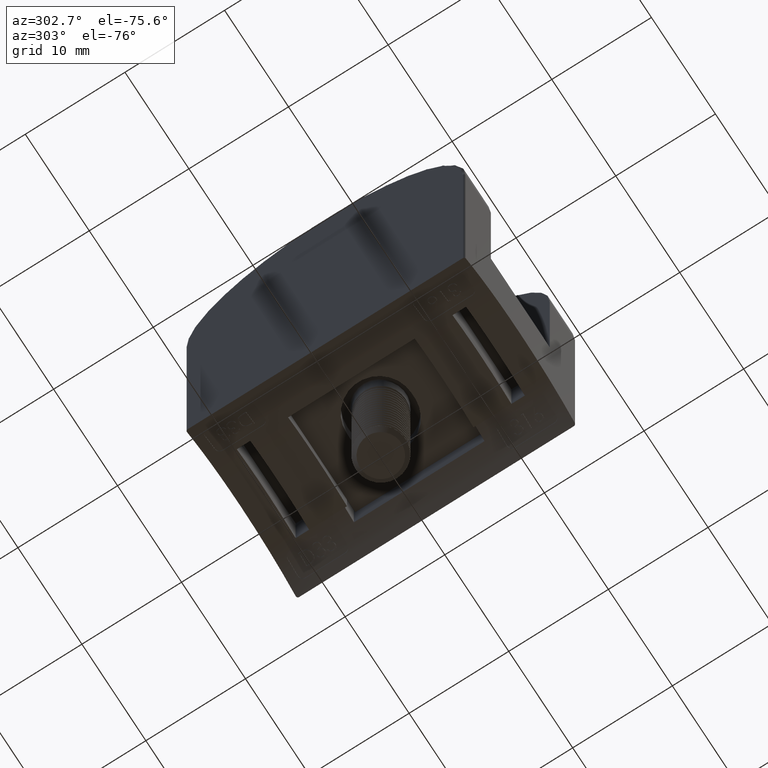
[diagram: clean part render]
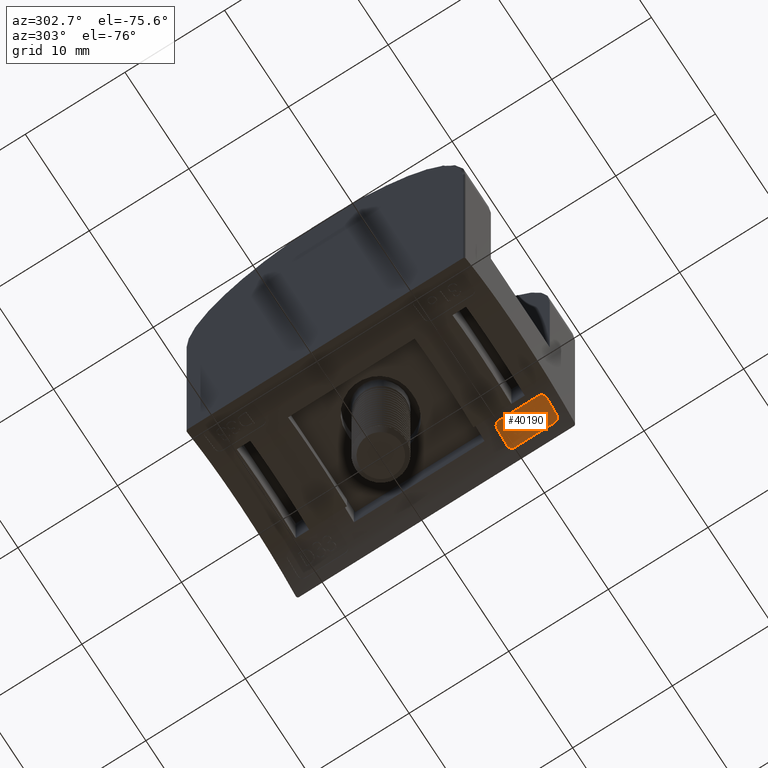
[diagram: same view with one face highlighted and labeled with its STEP entity id]
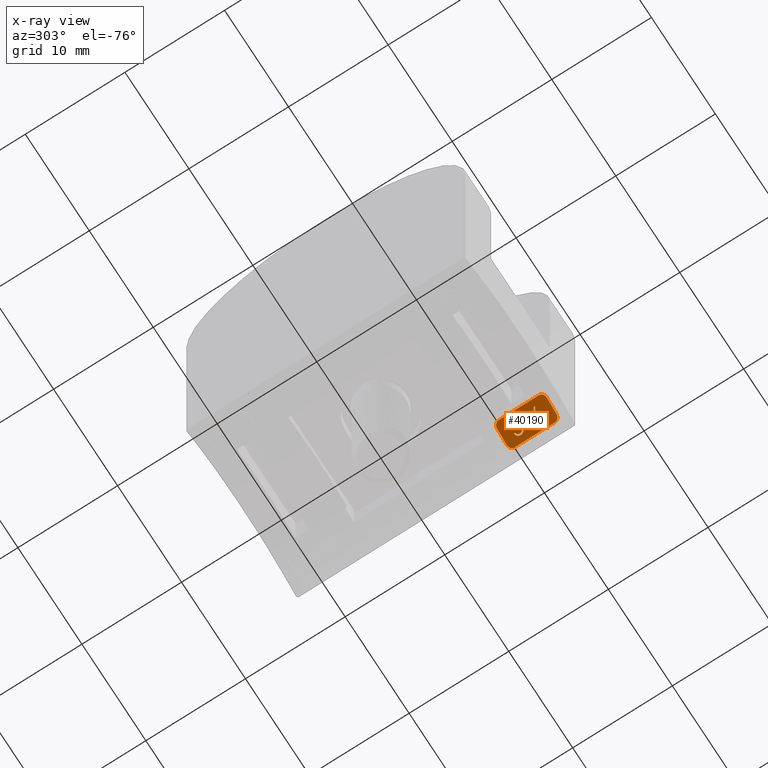
[diagram: x-ray of the same camera — body ghosted, the highlighted face saturated]
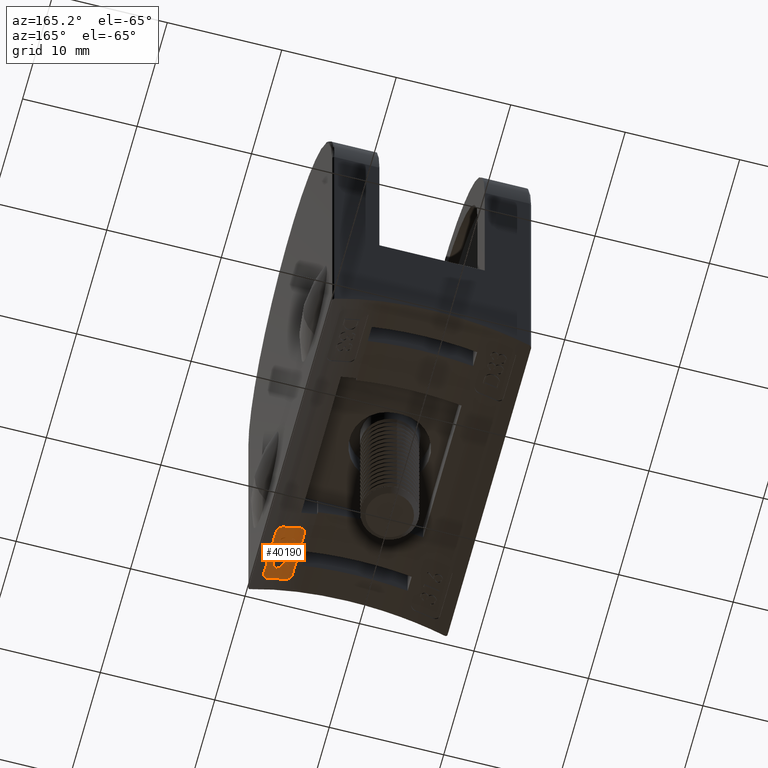
[diagram: same view with one face highlighted and labeled with its STEP entity id]
A machine part, auxiliary view. The second image highlights one B-rep face of the part: STEP entity #40190.
The next image is the same camera in x-ray: the body ghosted, the highlighted face saturated — about 0% of this face is hidden behind the body in this view.
A second angle (auxiliary view) of the same face is appended — the face is thin or edge-on in the first view.
In plain terms, the highlighted cylindrical surface (partial cylindrical patch) has radius 16.95 mm, axis along (0, -1, -0).
Its self-contained STEP definition (entity closure, byte-faithful):
#27 = CARTESIAN_POINT ( 'NONE',  ( 1.629790505243832400, 11.76018256754565000, -1.444946138365681600 ) ) ;
#118 = CARTESIAN_POINT ( 'NONE',  ( 1.749799416248807700, 9.278578703066234100, -1.390461914086929900 ) ) ;
#414 = CARTESIAN_POINT ( 'NONE',  ( 2.026668472081091500, 11.94013102909092600, -1.268832241233418100 ) ) ;
#433 = CARTESIAN_POINT ( 'NONE',  ( 1.014717443697587000, 8.361663562705782500, -1.742390308635440000 ) ) ;
#855 = CARTESIAN_POINT ( 'NONE',  ( 1.917975267077564900, 11.12954408708111000, -1.315853154788765500 ) ) ;
#858 = ORIENTED_EDGE ( 'NONE', *, *, #26124, .T. ) ;
#1006 = CARTESIAN_POINT ( 'NONE',  ( 2.083485801719910500, 11.93101666834453100, -1.244636686723369600 ) ) ;
#1529 = CARTESIAN_POINT ( 'NONE',  ( 2.922916666666668400, -13.99999999999999800, -0.9148875699064480400 ) ) ;
#1545 = CARTESIAN_POINT ( 'NONE',  ( 2.363221153846153800, 11.54916407919336900, -1.129067017033084300 ) ) ;
#1638 = CARTESIAN_POINT ( 'NONE',  ( 1.000000000000000200, 12.63969752374746300, -1.749917218769962800 ) ) ;
#1676 = DIRECTION ( 'NONE',  ( -0.0000000000000000000, 1.000000000000000000, -0.0000000000000000000 ) ) ;
#1687 = CARTESIAN_POINT ( 'NONE',  ( 2.034719272997772800, 9.922280634220545200, -1.265437258329322500 ) ) ;
#1842 = CARTESIAN_POINT ( 'NONE',  ( 2.059924388721183800, 9.791276614834126600, -1.254747649476767800 ) ) ;
#2055 = CARTESIAN_POINT ( 'NONE',  ( 3.499999999999999600, 12.49999999999998800, -0.7173467774206527800 ) ) ;
#2065 = B_SPLINE_CURVE_WITH_KNOTS ( 'NONE', 3,
 ( #38805, #6026, #24608, #48519 ),
 .UNSPECIFIED., .F., .F.,
 ( 4, 4 ),
 ( 0.0000000000000000000, 1.000000000000000000 ),
 .UNSPECIFIED. ) ;
#2296 = CARTESIAN_POINT ( 'NONE',  ( 1.701762820512819200, 9.467796390892086600, -1.412151173831140500 ) ) ;
#2485 = CARTESIAN_POINT ( 'NONE',  ( 2.493413515702167500, 9.686468126442727900, -1.077213809445988200 ) ) ;
#2576 = VERTEX_POINT ( 'NONE', #6161 ) ;
#2652 = CARTESIAN_POINT ( 'NONE',  ( 2.258496190773026800, 9.450516024179744800, -1.171685711482795400 ) ) ;
#2729 = ORIENTED_EDGE ( 'NONE', *, *, #58917, .F. ) ;
#2739 = DIRECTION ( 'NONE',  ( 0.0000000000000000000, -2.046871358084728800E-016, 1.000000000000000000 ) ) ;
#2740 = VERTEX_POINT ( 'NONE', #7785 ) ;
#3109 = DIRECTION ( 'NONE',  ( 0.0000000000000000000, 2.046871358084728800E-016, -1.000000000000000000 ) ) ;
#3143 = CARTESIAN_POINT ( 'NONE',  ( 2.956837606837600300, 11.67027243589742200, -0.9026307584678705500 ) ) ;
#3271 = CARTESIAN_POINT ( 'NONE',  ( 2.659369340274995600, 9.853501501303792800, -1.012836851631571100 ) ) ;
#3343 = VERTEX_POINT ( 'NONE', #25874 ) ;
#3369 = EDGE_CURVE ( 'NONE', #32063, #19464, #22107, .T. ) ;
#3419 = CARTESIAN_POINT ( 'NONE',  ( 1.956169871794871200, 9.024439102564088000, -1.299332644483947500 ) ) ;
#3459 = VERTEX_POINT ( 'NONE', #3143 ) ;
#3491 = CARTESIAN_POINT ( 'NONE',  ( 1.968890224358974100, 11.12753739316238800, -1.293822410750457700 ) ) ;
#3506 = ORIENTED_EDGE ( 'NONE', *, *, #16320, .F. ) ;
#3570 = CARTESIAN_POINT ( 'NONE',  ( 2.549566551838629900, 11.40388355444507200, -1.053812524479669400 ) ) ;
#3693 = B_SPLINE_CURVE_WITH_KNOTS ( 'NONE', 3,
 ( #59889, #59074, #25841, #40253, #16530, #30687 ),
 .UNSPECIFIED., .F., .F.,
 ( 4, 2, 4 ),
 ( 7.067301816566135100E-018, 0.0004017612816767404600, 0.0008035225633534738800 ),
 .UNSPECIFIED. ) ;
#3727 = ORIENTED_EDGE ( 'NONE', *, *, #25382, .F. ) ;
#4124 = CARTESIAN_POINT ( 'NONE',  ( 8.699999999999997500, -13.99999999999999800, -16.85000000000000100 ) ) ;
#4523 = VERTEX_POINT ( 'NONE', #5324 ) ;
#4731 = CARTESIAN_POINT ( 'NONE',  ( 1.499999999999999600, 12.99999999999999500, -1.505212611443589100 ) ) ;
#4761 = CARTESIAN_POINT ( 'NONE',  ( 1.834756710111667300, 11.92206282594563800, -1.352486439268812700 ) ) ;
#4858 = CARTESIAN_POINT ( 'NONE',  ( 1.705576539112778400, 9.408464366348605200, -1.410422918687497000 ) ) ;
#4941 = DIRECTION ( 'NONE',  ( -0.0000000000000000000, 1.000000000000000000, -0.0000000000000000000 ) ) ;
#4965 = CARTESIAN_POINT ( 'NONE',  ( 1.776719940101247500, 9.861461362937829400, -1.378390736183664300 ) ) ;
#5098 = EDGE_CURVE ( 'NONE', #47766, #29333, #48857, .T. ) ;
#5168 = CARTESIAN_POINT ( 'NONE',  ( 1.963883443112854200, 9.922277526055987500, -1.295957461399913000 ) ) ;
#5237 = DIRECTION ( 'NONE',  ( -0.0000000000000000000, 1.000000000000000000, 1.734723475976807300E-016 ) ) ;
#5324 = CARTESIAN_POINT ( 'NONE',  ( 2.397142094017087600, 9.397569444444437500, -1.115436700785477100 ) ) ;
#5614 = ORIENTED_EDGE ( 'NONE', *, *, #3369, .F. ) ;
#5654 = DIRECTION ( 'NONE',  ( 0.0000000000000000000, -2.046871358084728800E-016, 1.000000000000000000 ) ) ;
#5780 = CARTESIAN_POINT ( 'NONE',  ( 2.363221153846153800, 11.54916407919336900, -1.129067017033084300 ) ) ;
#6026 = CARTESIAN_POINT ( 'NONE',  ( 2.703080735672015700, 11.64272193198764100, -0.9951276542641631600 ) ) ;
#6089 = CARTESIAN_POINT ( 'NONE',  ( 1.599999999999999000, 10.56784188034186300, -1.458687515354648800 ) ) ;
#6114 = VECTOR ( 'NONE', #18874, 1000.000000000000000 ) ;
#6161 = CARTESIAN_POINT ( 'NONE',  ( 1.956169871794872100, 9.143162393162382900, -1.299332644483946100 ) ) ;
#6373 = CARTESIAN_POINT ( 'NONE',  ( 2.362297322795208700, 11.58185778176671700, -1.129439310021750800 ) ) ;
#6456 = CARTESIAN_POINT ( 'NONE',  ( 2.076470104131805400, 9.917062343915283400, -1.247652655506748400 ) ) ;
#6521 = CARTESIAN_POINT ( 'NONE',  ( 2.361638827239811900, 11.50322442972952300, -1.129704903341412600 ) ) ;
#6585 = CARTESIAN_POINT ( 'NONE',  ( 8.699999999999997500, 9.397569444444441100, -16.85000000000000100 ) ) ;
#6587 = ORIENTED_EDGE ( 'NONE', *, *, #54276, .F. ) ;
#6725 = CARTESIAN_POINT ( 'NONE',  ( 2.956837606837606100, 9.469121427617517700, -0.9026307584678705500 ) ) ;
#6796 = CARTESIAN_POINT ( 'NONE',  ( 2.363221153846153800, 11.54916407919336900, -1.129067017033084300 ) ) ;
#6864 = ORIENTED_EDGE ( 'NONE', *, *, #39994, .F. ) ;
#6923 = CARTESIAN_POINT ( 'NONE',  ( 2.613123080261752200, 9.855502136752130900, -1.030631195779088800 ) ) ;
#6970 = CIRCLE ( 'NONE', #22203, 16.94999999999999600 ) ;
#7137 = CARTESIAN_POINT ( 'NONE',  ( 2.662041489286525800, 9.086047462777225200, -1.011823933836574400 ) ) ;
#7148 = ORIENTED_EDGE ( 'NONE', *, *, #26242, .F. ) ;
#7270 = CARTESIAN_POINT ( 'NONE',  ( 2.418000731019728500, 9.556420661530710300, -1.107094235117007000 ) ) ;
#7432 = VERTEX_POINT ( 'NONE', #16535 ) ;
#7673 = CARTESIAN_POINT ( 'NONE',  ( 2.478073333414846600, 9.671593893606189600, -1.083250166428254800 ) ) ;
#7689 = CARTESIAN_POINT ( 'NONE',  ( 1.566079059829058600, 11.52822849893161600, -1.474380597212012300 ) ) ;
#7717 = CARTESIAN_POINT ( 'NONE',  ( 2.340960536858974500, 9.701002854567303000, -1.138058137002448100 ) ) ;
#7785 = CARTESIAN_POINT ( 'NONE',  ( 2.261458333333332200, 9.397569444444437500, -1.170469356304154200 ) ) ;
#7845 = CARTESIAN_POINT ( 'NONE',  ( 2.372884921082709700, 9.747422100771496300, -1.125137492254308000 ) ) ;
#8043 = CARTESIAN_POINT ( 'NONE',  ( 2.915005803076314200, 9.659984923933530300, -0.9177478311651344800 ) ) ;
#8248 = CARTESIAN_POINT ( 'NONE',  ( 3.000000000000000000, 12.99999999999999500, -0.8871525096554311300 ) ) ;
#8391 = ORIENTED_EDGE ( 'NONE', *, *, #16209, .T. ) ;
#8419 = EDGE_CURVE ( 'NONE', #59466, #21893, #39731, .T. ) ;
#8466 = CARTESIAN_POINT ( 'NONE',  ( 2.411311220897304400, 9.789455817025663400, -1.109687083621841100 ) ) ;
#8559 = EDGE_CURVE ( 'NONE', #37779, #21325, #39430, .T. ) ;
#8647 = ORIENTED_EDGE ( 'NONE', *, *, #32287, .F. ) ;
#8794 = CARTESIAN_POINT ( 'NONE',  ( 1.567414614126832600, 9.408616311138514400, -1.473760931849464200 ) ) ;
#8863 = CARTESIAN_POINT ( 'NONE',  ( 2.789705519223411000, 9.804349077036054200, -0.9637484544313540400 ) ) ;
#8915 = CARTESIAN_POINT ( 'NONE',  ( 1.567819247223383600, 11.57676740147179500, -1.473573191736697000 ) ) ;
#9033 = B_SPLINE_CURVE_WITH_KNOTS ( 'NONE', 3,
 ( #1545, #24904, #57932, #43650, #6521, #44242, #58138, #10667, #58526, #11251 ),
 .UNSPECIFIED., .F., .F.,
 ( 4, 3, 3, 4 ),
 ( 0.0000000000000000000, 0.2499659737960419900, 0.5000577659630097700, 1.000000000000000000 ),
 .UNSPECIFIED. ) ;
#9280 = EDGE_CURVE ( 'NONE', #3459, #12665, #24777, .T. ) ;
#9279 = CARTESIAN_POINT ( 'NONE',  ( 2.507270291837896600, 9.839885617999554400, -1.071743301566666400 ) ) ;
#9296 = DIRECTION ( 'NONE',  ( -0.0000000000000000000, 1.000000000000000000, -0.0000000000000000000 ) ) ;
#9303 = LINE ( 'NONE', #44998, #20370 ) ;
#9334 = CARTESIAN_POINT ( 'NONE',  ( 1.608964579538692400, 9.680627024339326400, -1.454543195789785200 ) ) ;
#9475 = EDGE_CURVE ( 'NONE', #17033, #11104, #6970, .T. ) ;
#9558 = EDGE_CURVE ( 'NONE', #7432, #32063, #43128, .T. ) ;
#9955 = CARTESIAN_POINT ( 'NONE',  ( 1.567766856176336300, 9.520717424146498700, -1.473597499933834600 ) ) ;
#10048 = CARTESIAN_POINT ( 'NONE',  ( 1.702861570790233500, 9.428065574839131100, -1.411652851219377100 ) ) ;
#10159 = CARTESIAN_POINT ( 'NONE',  ( 1.574033405036686200, 9.576881675344056400, -1.470680546303095200 ) ) ;
#10240 = B_SPLINE_CURVE_WITH_KNOTS ( 'NONE', 3,
 ( #39467, #58680, #17145, #35884, #26480, #36305, #45828, #21903, #26261, #50570, #59690, #31329, #45019, #17339, #21306, #2296 ),
 .UNSPECIFIED., .F., .F.,
 ( 4, 3, 3, 3, 3, 4 ),
 ( 0.0000000000000000000, 0.2019879595391756700, 0.4048037491840149600, 0.6031752373187329000, 0.8218135533023422900, 1.000000000000000000 ),
 .UNSPECIFIED. ) ;
#10367 = FACE_BOUND ( 'NONE', #28012, .T. ) ;
#10667 = CARTESIAN_POINT ( 'NONE',  ( 2.357724558648605800, 11.45745874897554900, -1.131283525763715300 ) ) ;
#10679 = EDGE_CURVE ( 'NONE', #21893, #45217, #58331, .T. ) ;
#10744 = VERTEX_POINT ( 'NONE', #61230 ) ;
#10800 = CARTESIAN_POINT ( 'NONE',  ( 1.993005892761750200, 9.923344017094008200, -1.283409813145613300 ) ) ;
#10951 = DIRECTION ( 'NONE',  ( -0.0000000000000000000, 1.000000000000000000, -0.0000000000000000000 ) ) ;
#11104 = VERTEX_POINT ( 'NONE', #57456 ) ;
#11236 = VECTOR ( 'NONE', #9296, 1000.000000000000000 ) ;
#11247 = B_SPLINE_CURVE_WITH_KNOTS ( 'NONE', 3,
 ( #59027, #2652, #30242, #21255, #54452, #12150, #35831, #39814, #16888, #16692, #21056, #35625, #1842, #21646, #16082, #54050 ),
 .UNSPECIFIED., .F., .F.,
 ( 4, 3, 3, 3, 3, 4 ),
 ( 0.0000000000000000000, 0.2790293430271587600, 0.4764936407752198300, 0.6768543830719855300, 0.8483795241104029600, 1.000000000000000000 ),
 .UNSPECIFIED. ) ;
#11251 = CARTESIAN_POINT ( 'NONE',  ( 2.350500801282048100, 11.41215528178418000, -1.134200309068583900 ) ) ;
#11265 = ORIENTED_EDGE ( 'NONE', *, *, #46861, .T. ) ;
#11317 = CARTESIAN_POINT ( 'NONE',  ( 2.355688454799731900, 11.64251706913824300, -1.132104521636923000 ) ) ;
#11738 = CARTESIAN_POINT ( 'NONE',  ( 1.373865060276176200, 12.99999999999999600, -1.564396980898511200 ) ) ;
#11877 = CARTESIAN_POINT ( 'NONE',  ( 3.499999999999999600, -13.99999999999999800, -0.7173467774206527800 ) ) ;
#11968 = CARTESIAN_POINT ( 'NONE',  ( 1.868132041726375100, 11.13733516498821200, -1.337719526150879200 ) ) ;
#12107 = ORIENTED_EDGE ( 'NONE', *, *, #21189, .T. ) ;
#12150 = CARTESIAN_POINT ( 'NONE',  ( 2.225643702266916900, 9.628493026070291400, -1.185212694429872600 ) ) ;
#12272 = VERTEX_POINT ( 'NONE', #2055 ) ;
#12401 = CARTESIAN_POINT ( 'NONE',  ( 1.579358192210117200, 11.41813609942512100, -1.468225204099147700 ) ) ;
#12665 = VERTEX_POINT ( 'NONE', #60084 ) ;
#12694 = LINE ( 'NONE', #45973, #11236 ) ;
#12765 = CARTESIAN_POINT ( 'NONE',  ( 2.704527608350064700, 9.844396213431887000, -0.9956983812107391700 ) ) ;
#12775 = CARTESIAN_POINT ( 'NONE',  ( 2.233514425328166500, 11.19895571927172800, -1.181817008119861300 ) ) ;
#12964 = VERTEX_POINT ( 'NONE', #5780 ) ;
#13057 = CARTESIAN_POINT ( 'NONE',  ( 2.353150874732905100, 11.27541149172007600, -1.133129885976146100 ) ) ;
#13106 = CARTESIAN_POINT ( 'NONE',  ( 1.761948289916840800, 9.091130192054935200, -1.384923895727774100 ) ) ;
#13114 = EDGE_CURVE ( 'NONE', #45217, #31306, #41260, .T. ) ;
#13208 = CARTESIAN_POINT ( 'NONE',  ( 8.699999999999997500, 10.56784188034187400, -16.85000000000000100 ) ) ;
#13513 = CARTESIAN_POINT ( 'NONE',  ( 1.905335791005389400, 9.034571744048776100, -1.321377769476352900 ) ) ;
#13686 = CARTESIAN_POINT ( 'NONE',  ( 2.885020616319446500, 11.76169996995191100, -0.9286773549629340200 ) ) ;
#14051 = CARTESIAN_POINT ( 'NONE',  ( 1.906923246670891200, 11.93863800973072000, -1.320744436778742900 ) ) ;
#14848 = CARTESIAN_POINT ( 'NONE',  ( 1.108179076088410300, 8.182547006827348900, -1.695146808793908100 ) ) ;
#15075 = CARTESIAN_POINT ( 'NONE',  ( 2.617628205128206300, -13.99999999999999800, -1.028898478647327000 ) ) ;
#15284 = ORIENTED_EDGE ( 'NONE', *, *, #10679, .F. ) ;
#15441 = EDGE_CURVE ( 'NONE', #59704, #61017, #49210, .T. ) ;
#15448 = CARTESIAN_POINT ( 'NONE',  ( 2.342945305589154700, 11.68675273790938900, -1.137240723357418000 ) ) ;
#15657 = DIRECTION ( 'NONE',  ( -0.0000000000000000000, 1.000000000000000000, 1.734723475976807300E-016 ) ) ;
#15677 = CARTESIAN_POINT ( 'NONE',  ( 1.000000000000000000, 12.49999999999998800, -1.749917218769962300 ) ) ;
#15686 = LINE ( 'NONE', #1529, #6114 ) ;
#15842 = B_SPLINE_CURVE_WITH_KNOTS ( 'NONE', 3,
 ( #39643, #25045, #30271, #44590, #53880, #24833 ),
 .UNSPECIFIED., .F., .F.,
 ( 4, 2, 4 ),
 ( 0.0000000000000000000, 0.0004017633215715625300, 0.0008035266431431250600 ),
 .UNSPECIFIED. ) ;
#15888 = DIRECTION ( 'NONE',  ( -0.0000000000000000000, 1.000000000000000000, -0.0000000000000000000 ) ) ;
#15990 = CARTESIAN_POINT ( 'NONE',  ( 2.832389703687828100, 10.27147533275460700, -0.9479255736794478500 ) ) ;
#16049 = DIRECTION ( 'NONE',  ( 0.0000000000000000000, 2.046871358084728800E-016, -1.000000000000000000 ) ) ;
#16082 = CARTESIAN_POINT ( 'NONE',  ( 2.007980229196524700, 9.803380635706217200, -1.276940045317515300 ) ) ;
#16180 = CARTESIAN_POINT ( 'NONE',  ( 2.914916339685102600, 9.281022785676913900, -0.9177799153117006700 ) ) ;
#16190 = CARTESIAN_POINT ( 'NONE',  ( 2.877618172136761700, 10.29735771679128600, -0.9313099942176535900 ) ) ;
#16209 = EDGE_CURVE ( 'NONE', #12272, #10744, #25354, .T. ) ;
#16318 = CARTESIAN_POINT ( 'NONE',  ( 2.591831687409973800, 9.735674567474870100, -1.038822734447730100 ) ) ;
#16320 = EDGE_CURVE ( 'NONE', #18987, #48372, #26721, .T. ) ;
#16385 = CARTESIAN_POINT ( 'NONE',  ( 2.949068616459157100, 9.371734254111668600, -0.9054204192900513500 ) ) ;
#16452 = DIRECTION ( 'NONE',  ( 0.0000000000000000000, -1.000000000000000000, -1.734723475976807100E-016 ) ) ;
#16530 = CARTESIAN_POINT ( 'NONE',  ( 3.127787947235917800, 7.999999999999992900, -0.8415220981837118200 ) ) ;
#16535 = CARTESIAN_POINT ( 'NONE',  ( 1.993005892761750200, 9.923344017094008200, -1.283409813145613300 ) ) ;
#16543 = ORIENTED_EDGE ( 'NONE', *, *, #50671, .F. ) ;
#16591 = CARTESIAN_POINT ( 'NONE',  ( 2.825240441380496100, 9.170512404743711000, -0.9506019319715919300 ) ) ;
#16597 = CARTESIAN_POINT ( 'NONE',  ( 1.889014189916338800, 9.163554773069025200, -1.328455929059379600 ) ) ;
#16692 = CARTESIAN_POINT ( 'NONE',  ( 2.139181228938453300, 9.745629136004689400, -1.221239426835301500 ) ) ;
#16724 = CARTESIAN_POINT ( 'NONE',  ( 2.400654353229620100, 9.476045022598896100, -1.114027749750545500 ) ) ;
#16805 = B_SPLINE_CURVE_WITH_KNOTS ( 'NONE', 3,
 ( #3419, #13513, #22808, #13106, #27621, #17857, #50647, #51055, #8794, #26986 ),
 .UNSPECIFIED., .F., .F.,
 ( 4, 2, 2, 2, 4 ),
 ( 9.697399036122160600E-019, 0.0001667238440304049200, 0.0003334476880608088600, 0.0005001715320912127700, 0.0006668953761216167400 ),
 .UNSPECIFIED. ) ;
#16888 = CARTESIAN_POINT ( 'NONE',  ( 2.166810619050338400, 9.722702575195986800, -1.209640847381068500 ) ) ;
#16921 = CARTESIAN_POINT ( 'NONE',  ( 2.613653094951923900, 9.736778846153839600, -1.030427270263851900 ) ) ;
#16964 = CARTESIAN_POINT ( 'NONE',  ( 2.787232905982907300, -13.99999999999999800, -0.9647337040920717100 ) ) ;
#17033 = VERTEX_POINT ( 'NONE', #22581 ) ;
#17045 = ORIENTED_EDGE ( 'NONE', *, *, #17967, .T. ) ;
#17145 = CARTESIAN_POINT ( 'NONE',  ( 1.918675346090887000, 9.798985702153141000, -1.315613809683555900 ) ) ;
#17260 = CARTESIAN_POINT ( 'NONE',  ( 2.749332308095117700, 9.676044484351654900, -0.9788800625433449200 ) ) ;
#17339 = CARTESIAN_POINT ( 'NONE',  ( 1.704439387294799800, 9.528477037146140900, -1.410936868309586900 ) ) ;
#17369 = B_SPLINE_CURVE_WITH_KNOTS ( 'NONE', 3,
 ( #16921, #16318, #25626, #35863, #40449, #30677, #2485, #7673, #49726, #40658, #50138, #7270, #40860, #16724, #54693, #36071 ),
 .UNSPECIFIED., .F., .F.,
 ( 4, 3, 3, 3, 3, 4 ),
 ( 0.0000000000000000000, 0.1547772456757933500, 0.3102887452692457100, 0.4561130539699008200, 0.7431018192126411800, 1.000000000000000000 ),
 .UNSPECIFIED. ) ;
#17580 = CARTESIAN_POINT ( 'NONE',  ( 8.699999999999997500, 12.99999999999999800, -16.85000000000000100 ) ) ;
#17615 = CARTESIAN_POINT ( 'NONE',  ( 2.956837606837600300, 11.67027243589742200, -0.9026307584678705500 ) ) ;
#17652 = B_SPLINE_CURVE_WITH_KNOTS ( 'NONE', 3,
 ( #46856, #8915, #28369, #27529, #27954, #27, #33204, #60940, #28160, #23565, #23367, #4761, #27737, #14051, #42124, #32583 ),
 .UNSPECIFIED., .F., .F.,
 ( 4, 3, 3, 3, 3, 4 ),
 ( 0.0000000000000000000, 0.2173642609205679900, 0.4354517226912299500, 0.6427758930263185500, 0.8454231819566815400, 1.000000000000000000 ),
 .UNSPECIFIED. ) ;
#17802 = CARTESIAN_POINT ( 'NONE',  ( 2.750795462540195600, 11.53550386917085500, -0.9768331850006191100 ) ) ;
#17854 = CARTESIAN_POINT ( 'NONE',  ( 2.672140679584171800, 9.218171759910454500, -1.007941332480722500 ) ) ;
#17857 = CARTESIAN_POINT ( 'NONE',  ( 1.642469818490720300, 9.198861535657036000, -1.439112878375476100 ) ) ;
#17931 = CARTESIAN_POINT ( 'NONE',  ( 2.037737856949964200, 11.12979403436925800, -1.264032253746688200 ) ) ;
#17967 = EDGE_CURVE ( 'NONE', #2740, #4523, #43926, .T. ) ;
#18068 = CARTESIAN_POINT ( 'NONE',  ( 2.821153846153846300, 9.470711471688028700, -0.9521489534148606100 ) ) ;
#18145 = CARTESIAN_POINT ( 'NONE',  ( 2.104404063946911000, 11.14491594318216800, -1.235727419991639300 ) ) ;
#18874 = DIRECTION ( 'NONE',  ( -0.0000000000000000000, 1.000000000000000000, -0.0000000000000000000 ) ) ;
#18957 = CARTESIAN_POINT ( 'NONE',  ( 2.613123080261752200, 9.855502136752130900, -1.030631195779088800 ) ) ;
#18987 = VERTEX_POINT ( 'NONE', #31374 ) ;
#19008 = CARTESIAN_POINT ( 'NONE',  ( 1.670184847423126900, 9.770961863152846800, -1.426504970644427900 ) ) ;
#19215 = CARTESIAN_POINT ( 'NONE',  ( 1.993005892761750200, 9.923344017094008200, -1.283409813145613300 ) ) ;
#19380 = CARTESIAN_POINT ( 'NONE',  ( 1.566079059829058800, 9.465676332131401700, -1.474380597212012100 ) ) ;
#19427 = CARTESIAN_POINT ( 'NONE',  ( 1.591419094343419200, 9.628517053494503500, -1.462648781947672600 ) ) ;
#19464 = VERTEX_POINT ( 'NONE', #37316 ) ;
#19634 = CARTESIAN_POINT ( 'NONE',  ( 1.737366606103377900, 9.837596674508814600, -1.396000678880134700 ) ) ;
#19816 = CARTESIAN_POINT ( 'NONE',  ( 2.174458348591779900, 11.89074476262979200, -1.206418689874999100 ) ) ;
#20212 = EDGE_CURVE ( 'NONE', #12665, #20366, #2065, .T. ) ;
#20366 = VERTEX_POINT ( 'NONE', #31086 ) ;
#20370 = VECTOR ( 'NONE', #1676, 1000.000000000000000 ) ;
#20919 = EDGE_CURVE ( 'NONE', #29217, #61363, #16805, .T. ) ;
#21056 = CARTESIAN_POINT ( 'NONE',  ( 2.115404279157877500, 9.765358984647107800, -1.231220785095203500 ) ) ;
#21058 = CARTESIAN_POINT ( 'NONE',  ( 2.787232905982900600, 10.24559294871793100, -0.9647337040920717100 ) ) ;
#21189 = EDGE_CURVE ( 'NONE', #44319, #49391, #42237, .T. ) ;
#21198 = ORIENTED_EDGE ( 'NONE', *, *, #20212, .T. ) ;
#21255 = CARTESIAN_POINT ( 'NONE',  ( 2.243818710395652200, 9.555552213702792800, -1.177724378515970100 ) ) ;
#21306 = CARTESIAN_POINT ( 'NONE',  ( 1.702331507370812700, 9.498038845548887100, -1.411893378489452700 ) ) ;
#21325 = VERTEX_POINT ( 'NONE', #33433 ) ;
#21563 = AXIS2_PLACEMENT_3D ( 'NONE', #53807, #16452, #16049 ) ;
#21646 = CARTESIAN_POINT ( 'NONE',  ( 2.034787673400379100, 9.800226629374297000, -1.265450245792481400 ) ) ;
#21893 = VERTEX_POINT ( 'NONE', #30933 ) ;
#21903 = CARTESIAN_POINT ( 'NONE',  ( 1.785131421390293100, 9.713946932683907000, -1.374608115744829800 ) ) ;
#21930 = ORIENTED_EDGE ( 'NONE', *, *, #9558, .F. ) ;
#21979 = DIRECTION ( 'NONE',  ( 0.0000000000000000000, -1.000000000000000000, 0.0000000000000000000 ) ) ;
#22107 = B_SPLINE_CURVE_WITH_KNOTS ( 'NONE', 3,
 ( #41104, #50994, #36119, #32197, #60546, #7717 ),
 .UNSPECIFIED., .F., .F.,
 ( 4, 2, 4 ),
 ( 0.0000000000000000000, 9.543726081628453200E-005, 0.0001908745216325690600 ),
 .UNSPECIFIED. ) ;
#22203 = AXIS2_PLACEMENT_3D ( 'NONE', #33658, #5237, #5654 ) ;
#22581 = CARTESIAN_POINT ( 'NONE',  ( 1.599999999999999000, 10.44911858974358100, -1.458687515354648100 ) ) ;
#22606 = CARTESIAN_POINT ( 'NONE',  ( 2.726047243107235100, 9.247468595324958700, -0.9875886081298646000 ) ) ;
#22808 = CARTESIAN_POINT ( 'NONE',  ( 1.855842107786011400, 9.048438860608946800, -1.343142059425300500 ) ) ;
#22896 = CARTESIAN_POINT ( 'NONE',  ( 2.821153846153846300, 9.470711471688028700, -0.9521489534148606100 ) ) ;
#22906 = EDGE_CURVE ( 'NONE', #60910, #59704, #15686, .T. ) ;
#23367 = CARTESIAN_POINT ( 'NONE',  ( 1.794770633885635300, 11.90603031400244700, -1.370274455089467700 ) ) ;
#23565 = CARTESIAN_POINT ( 'NONE',  ( 1.758329758243839300, 11.88401897662831900, -1.386633152682552200 ) ) ;
#23621 = CARTESIAN_POINT ( 'NONE',  ( 2.908940007089783300, 11.73122412526707100, -0.9199412237192741100 ) ) ;
#23628 = B_SPLINE_CURVE_WITH_KNOTS ( 'NONE', 3,
 ( #28364, #57205, #37960, #14848, #28773, #433, #33599, #38361 ),
 .UNSPECIFIED., .F., .F.,
 ( 4, 2, 2, 4 ),
 ( 4.848699518061080300E-019, 0.0004128381607776189300, 0.0006192572411664280900, 0.0008256763215552373100 ),
 .UNSPECIFIED. ) ;
#23655 = CARTESIAN_POINT ( 'NONE',  ( 1.710990827387382000, 9.369374925629522000, -1.407970142634600500 ) ) ;
#24171 = CARTESIAN_POINT ( 'NONE',  ( 1.700305930688882100, 9.807466102537972600, -1.412776198589156500 ) ) ;
#24349 = CARTESIAN_POINT ( 'NONE',  ( 2.135018265596700700, 11.90820417602839000, -1.222987655122596200 ) ) ;
#24366 = CARTESIAN_POINT ( 'NONE',  ( 1.816900112831054200, 9.885827463743234800, -1.360410797321445400 ) ) ;
#24469 = CARTESIAN_POINT ( 'NONE',  ( 1.702066770943744300, 9.447972673014051600, -1.412013387975715500 ) ) ;
#24608 = CARTESIAN_POINT ( 'NONE',  ( 2.524907463992889200, 11.52620703593172800, -1.063736509140377400 ) ) ;
#24777 = B_SPLINE_CURVE_WITH_KNOTS ( 'NONE', 3,
 ( #17615, #28218, #23621, #13686 ),
 .UNSPECIFIED., .F., .F.,
 ( 4, 4 ),
 ( 0.0000000000000000000, 1.000000000000000000 ),
 .UNSPECIFIED. ) ;
#24833 = CARTESIAN_POINT ( 'NONE',  ( 3.499999999999999600, 12.49999999999998800, -0.7173467774206527800 ) ) ;
#24904 = CARTESIAN_POINT ( 'NONE',  ( 2.362922735695268000, 11.53767639796490700, -1.129187303140014800 ) ) ;
#25045 = CARTESIAN_POINT ( 'NONE',  ( 3.127891539818151500, 12.99999999999999100, -0.8414851074325878600 ) ) ;
#25354 = LINE ( 'NONE', #11877, #57325 ) ;
#25382 = EDGE_CURVE ( 'NONE', #61363, #7432, #34711, .T. ) ;
#25439 = EDGE_CURVE ( 'NONE', #3343, #47766, #23628, .T. ) ;
#25626 = CARTESIAN_POINT ( 'NONE',  ( 2.569557897994536200, 9.732514731039831400, -1.047447888387923900 ) ) ;
#25679 = CARTESIAN_POINT ( 'NONE',  ( 1.773314803685898300, 9.246780265090803800, -1.379914926182112200 ) ) ;
#25757 = CARTESIAN_POINT ( 'NONE',  ( 1.701762820512819200, 9.467796390892086600, -1.412151173831140500 ) ) ;
#25841 = CARTESIAN_POINT ( 'NONE',  ( 3.441995574714100700, 8.232346307206794800, -0.7358572251665438400 ) ) ;
#25847 = CYLINDRICAL_SURFACE ( 'NONE', #58866, 16.94999999999999600 ) ;
#25874 = CARTESIAN_POINT ( 'NONE',  ( 1.499999999999999600, 7.999999999999992900, -1.505212611443589100 ) ) ;
#26045 = CARTESIAN_POINT ( 'NONE',  ( 2.228067407852564400, 9.844371828258541500, -1.184222377337928600 ) ) ;
#26124 = EDGE_CURVE ( 'NONE', #49275, #60910, #29247, .T. ) ;
#26215 = ORIENTED_EDGE ( 'NONE', *, *, #55638, .F. ) ;
#26242 = EDGE_CURVE ( 'NONE', #46624, #2576, #57758, .T. ) ;
#26261 = CARTESIAN_POINT ( 'NONE',  ( 1.764161949502519600, 9.688512080042299200, -1.384005863292069800 ) ) ;
#26480 = CARTESIAN_POINT ( 'NONE',  ( 1.860096664241045500, 9.775473636579047100, -1.341316946536130100 ) ) ;
#26640 = CARTESIAN_POINT ( 'NONE',  ( 2.340960536858974500, 9.701002854567303000, -1.138058137002448100 ) ) ;
#26721 = B_SPLINE_CURVE_WITH_KNOTS ( 'NONE', 3,
 ( #39000, #855, #11968, #54711, #40878, #45218, #30910, #55131, #12401, #41075, #41278, #7689 ),
 .UNSPECIFIED., .F., .F.,
 ( 4, 2, 2, 2, 2, 4 ),
 ( 9.697399036122160600E-019, 0.0001648378285271693200, 0.0003296756570543376700, 0.0004945134855815061300, 0.0005769323998450901400, 0.0006593513141086742600 ),
 .UNSPECIFIED. ) ;
#26986 = CARTESIAN_POINT ( 'NONE',  ( 1.566079059829058800, 9.465676332131401700, -1.474380597212012100 ) ) ;
#27007 = EDGE_LOOP ( 'NONE', ( #57540, #7148, #39470, #8647, #56259, #17045, #6864, #50380, #15284, #52616, #39422, #59342, #6587, #5614, #21930, #3727, #33743 ) ) ;
#27405 = CARTESIAN_POINT ( 'NONE',  ( 2.798380877778143800, 9.347631456336511500, -0.9605855708848285400 ) ) ;
#27529 = CARTESIAN_POINT ( 'NONE',  ( 1.590151577448897200, 11.67152407905690300, -1.463234407182944600 ) ) ;
#27621 = CARTESIAN_POINT ( 'NONE',  ( 1.716953462457912600, 9.121425665162211900, -1.405219807556713500 ) ) ;
#27737 = CARTESIAN_POINT ( 'NONE',  ( 1.875611187416118800, 11.93144626738610500, -1.334516851393909400 ) ) ;
#27954 = CARTESIAN_POINT ( 'NONE',  ( 1.606160220203328300, 11.71706010863097100, -1.455837204518863700 ) ) ;
#28012 = EDGE_LOOP ( 'NONE', ( #51193, #56733, #16543, #58985, #2729, #858 ) ) ;
#28160 = CARTESIAN_POINT ( 'NONE',  ( 1.721184901109815500, 11.86158241417774500, -1.403307875073055900 ) ) ;
#28218 = CARTESIAN_POINT ( 'NONE',  ( 2.932879084976603300, 11.70074828058224600, -0.9112589954932912600 ) ) ;
#28364 = CARTESIAN_POINT ( 'NONE',  ( 1.499999999999999600, 7.999999999999992900, -1.505212611443589100 ) ) ;
#28369 = CARTESIAN_POINT ( 'NONE',  ( 1.574226467938160100, 11.62622565689987800, -1.470593011176153200 ) ) ;
#28674 = CARTESIAN_POINT ( 'NONE',  ( 1.773314803685898300, 9.246780265090803800, -1.379914926182112200 ) ) ;
#28750 = CARTESIAN_POINT ( 'NONE',  ( 1.000000000000000000, 8.499999999999987600, -1.749917218769962300 ) ) ;
#28773 = CARTESIAN_POINT ( 'NONE',  ( 1.069379257771990500, 8.236937449077865700, -1.714707943184637900 ) ) ;
#28807 = B_SPLINE_CURVE_WITH_KNOTS ( 'NONE', 3,
 ( #13057, #3570, #17802, #60563 ),
 .UNSPECIFIED., .F., .F.,
 ( 4, 4 ),
 ( 0.0000000000000000000, 1.000000000000000000 ),
 .UNSPECIFIED. ) ;
#28971 = EDGE_CURVE ( 'NONE', #60182, #3343, #33983, .T. ) ;
#29183 = CARTESIAN_POINT ( 'NONE',  ( 2.243219501129530200, 11.83417748178348800, -1.177971235688542300 ) ) ;
#29203 = CARTESIAN_POINT ( 'NONE',  ( 1.860975183659914000, 9.903824670630884300, -1.340884383165476600 ) ) ;
#29217 = VERTEX_POINT ( 'NONE', #60217 ) ;
#29247 = B_SPLINE_CURVE_WITH_KNOTS ( 'NONE', 3,
 ( #49012, #15990, #16190, #39918 ),
 .UNSPECIFIED., .F., .F.,
 ( 4, 4 ),
 ( 0.0000000000000000000, 1.000000000000000000 ),
 .UNSPECIFIED. ) ;
#29333 = VERTEX_POINT ( 'NONE', #51699 ) ;
#29389 = CARTESIAN_POINT ( 'NONE',  ( 2.303091324724132200, 11.76680676431442600, -1.153422785724761600 ) ) ;
#29801 = DIRECTION ( 'NONE',  ( 0.0000000000000000000, -2.046871358084728800E-016, 1.000000000000000000 ) ) ;
#30242 = CARTESIAN_POINT ( 'NONE',  ( 2.254156853621692900, 9.503700698598702700, -1.173465588760274500 ) ) ;
#30271 = CARTESIAN_POINT ( 'NONE',  ( 3.254199048610212600, 12.95005934202933100, -0.7983467233159453600 ) ) ;
#30403 = FACE_BOUND ( 'NONE', #27007, .T. ) ;
#30632 = B_SPLINE_CURVE_WITH_KNOTS ( 'NONE', 3,
 ( #46410, #36468, #12775, #18145, #17931, #3491 ),
 .UNSPECIFIED., .F., .F.,
 ( 4, 2, 4 ),
 ( 0.0000000000000000000, 0.0002247412126877078100, 0.0004494824253754156300 ),
 .UNSPECIFIED. ) ;
#30677 = CARTESIAN_POINT ( 'NONE',  ( 2.509697969626647900, 9.702257949193974400, -1.070805881866751600 ) ) ;
#30687 = CARTESIAN_POINT ( 'NONE',  ( 3.000000000000000000, 7.999999999999992900, -0.8871525096554311300 ) ) ;
#30910 = CARTESIAN_POINT ( 'NONE',  ( 1.619726141372628500, 11.31735863309133800, -1.449585115485713800 ) ) ;
#30933 = CARTESIAN_POINT ( 'NONE',  ( 2.617628205128205400, 9.194043803418791700, -1.028898478647325200 ) ) ;
#31036 = CARTESIAN_POINT ( 'NONE',  ( 1.971275290464740600, 11.94163995726494900, -1.292790617103287500 ) ) ;
#31078 = B_SPLINE_CURVE_WITH_KNOTS ( 'NONE', 3,
 ( #26640, #7845, #8466, #55912, #9279, #37084, #56742, #18957 ),
 .UNSPECIFIED., .F., .F.,
 ( 4, 2, 2, 4 ),
 ( 0.0000000000000000000, 0.0001718664818359217900, 0.0002577997227538826900, 0.0003437329636718435700 ),
 .UNSPECIFIED. ) ;
#31086 = CARTESIAN_POINT ( 'NONE',  ( 2.350500801282048100, 11.41215528178418000, -1.134200309068583900 ) ) ;
#31306 = VERTEX_POINT ( 'NONE', #41318 ) ;
#31329 = CARTESIAN_POINT ( 'NONE',  ( 1.716985913372348800, 9.594037768238290900, -1.405257486054764400 ) ) ;
#31374 = CARTESIAN_POINT ( 'NONE',  ( 1.968890224358974100, 11.12753739316238800, -1.293822410750457700 ) ) ;
#31738 = DIRECTION ( 'NONE',  ( -0.0000000000000000000, -1.000000000000000000, -1.734723475976807300E-016 ) ) ;
#31990 = EDGE_CURVE ( 'NONE', #35579, #46624, #49720, .T. ) ;
#32063 = VERTEX_POINT ( 'NONE', #53305 ) ;
#32091 = CARTESIAN_POINT ( 'NONE',  ( 1.000000000000000000, -13.99999999999999800, -1.749917218769962300 ) ) ;
#32197 = CARTESIAN_POINT ( 'NONE',  ( 2.312423823595583200, 9.756269867903983000, -1.149624345382614300 ) ) ;
#32262 = CARTESIAN_POINT ( 'NONE',  ( 2.820048027869661100, 9.439038403834599600, -0.9525578725541739000 ) ) ;
#32287 = EDGE_CURVE ( 'NONE', #37677, #35579, #10240, .T. ) ;
#32583 = CARTESIAN_POINT ( 'NONE',  ( 1.971275290464740600, 11.94163995726494900, -1.292790617103287500 ) ) ;
#32721 = ORIENTED_EDGE ( 'NONE', *, *, #5098, .T. ) ;
#33011 = CARTESIAN_POINT ( 'NONE',  ( 2.922916666666671900, 10.56784188034186300, -0.9148875699064428200 ) ) ;
#33065 = VECTOR ( 'NONE', #60327, 1000.000000000000000 ) ;
#33204 = CARTESIAN_POINT ( 'NONE',  ( 1.659221155479900800, 11.79675777276330900, -1.431506777166902600 ) ) ;
#33367 = CARTESIAN_POINT ( 'NONE',  ( 2.353150874732905100, 11.27541149172007600, -1.133129885976146100 ) ) ;
#33433 = CARTESIAN_POINT ( 'NONE',  ( 2.956837606837606100, 9.469121427617517700, -0.9026307584678705500 ) ) ;
#33599 = CARTESIAN_POINT ( 'NONE',  ( 1.000000000000000000, 8.429969452907782200, -1.749917218769960500 ) ) ;
#33658 = CARTESIAN_POINT ( 'NONE',  ( 8.699999999999997500, 10.44911858974358400, -16.85000000000000100 ) ) ;
#33743 = ORIENTED_EDGE ( 'NONE', *, *, #20919, .F. ) ;
#33983 = CIRCLE ( 'NONE', #21563, 16.94999999999999600 ) ;
#34711 = B_SPLINE_CURVE_WITH_KNOTS ( 'NONE', 3,
 ( #51988, #9955, #10159, #19427, #9334, #42514, #19008, #24171, #19634, #4965, #24366, #29203, #52800, #37756, #5168, #19215 ),
 .UNSPECIFIED., .F., .F.,
 ( 4, 3, 3, 3, 3, 4 ),
 ( 0.0000000000000000000, 0.2279444961856998400, 0.4582503499618803500, 0.6618990568364631100, 0.8697221680855582400, 1.000000000000000000 ),
 .UNSPECIFIED. ) ;
#34970 = EDGE_CURVE ( 'NONE', #50716, #3459, #28807, .T. ) ;
#35126 = CARTESIAN_POINT ( 'NONE',  ( 2.889149894648334700, 9.240268210999477800, -0.9271334286080499300 ) ) ;
#35182 = CARTESIAN_POINT ( 'NONE',  ( 2.323323866207635200, 11.72616599581386000, -1.145207690493879500 ) ) ;
#35481 = ORIENTED_EDGE ( 'NONE', *, *, #28971, .T. ) ;
#35579 = VERTEX_POINT ( 'NONE', #25757 ) ;
#35593 = CARTESIAN_POINT ( 'NONE',  ( 2.821153846153846300, 9.470711471688028700, -0.9521489534148606100 ) ) ;
#35625 = CARTESIAN_POINT ( 'NONE',  ( 2.088313752116884200, 9.781168483682742800, -1.242660155458295200 ) ) ;
#35721 = CARTESIAN_POINT ( 'NONE',  ( 1.981610576923074300, 9.804620726495720400, -1.288324525942330800 ) ) ;
#35795 = CARTESIAN_POINT ( 'NONE',  ( 2.800432339486952600, 9.596225283167282100, -0.9598243179330099300 ) ) ;
#35831 = CARTESIAN_POINT ( 'NONE',  ( 2.208342156868647900, 9.660799432950074800, -1.192385927360631200 ) ) ;
#35863 = CARTESIAN_POINT ( 'NONE',  ( 2.549278773928282500, 9.723896683252471400, -1.055344942067346000 ) ) ;
#35884 = CARTESIAN_POINT ( 'NONE',  ( 1.889452739742167700, 9.787256455010327400, -1.328436096332057200 ) ) ;
#36071 = CARTESIAN_POINT ( 'NONE',  ( 2.397142094017087600, 9.397569444444437500, -1.115436700785477100 ) ) ;
#36119 = CARTESIAN_POINT ( 'NONE',  ( 2.274246712445104900, 9.804762893807105000, -1.165210559495897500 ) ) ;
#36202 = EDGE_CURVE ( 'NONE', #21325, #59466, #61184, .T. ) ;
#36305 = CARTESIAN_POINT ( 'NONE',  ( 1.832596629133359100, 9.757255452269451000, -1.353485579068059300 ) ) ;
#36400 = CARTESIAN_POINT ( 'NONE',  ( 1.566079059829058600, 11.52822849893161600, -1.474380597212012300 ) ) ;
#36460 = CARTESIAN_POINT ( 'NONE',  ( 2.890811114437204000, 9.703065619448038200, -0.9265282232335430000 ) ) ;
#36468 = CARTESIAN_POINT ( 'NONE',  ( 2.293648954069698900, 11.23672801030383900, -1.157158188709017900 ) ) ;
#36885 = CARTESIAN_POINT ( 'NONE',  ( 2.613123080261752200, 9.855502136752130900, -1.030631195779088800 ) ) ;
#37084 = CARTESIAN_POINT ( 'NONE',  ( 2.559488595660937000, 9.852848265601092900, -1.051347988730438200 ) ) ;
#37316 = CARTESIAN_POINT ( 'NONE',  ( 2.340960536858974500, 9.701002854567303000, -1.138058137002448100 ) ) ;
#37677 = VERTEX_POINT ( 'NONE', #35721 ) ;
#37756 = CARTESIAN_POINT ( 'NONE',  ( 1.934581614532068700, 9.920435900503388600, -1.308681539272238800 ) ) ;
#37779 = VERTEX_POINT ( 'NONE', #6923 ) ;
#37960 = CARTESIAN_POINT ( 'NONE',  ( 1.250844630373837600, 8.047096302793553600, -1.624236799747106800 ) ) ;
#38243 = VECTOR ( 'NONE', #15888, 1000.000000000000000 ) ;
#38361 = CARTESIAN_POINT ( 'NONE',  ( 1.000000000000000000, 8.499999999999987600, -1.749917218769962300 ) ) ;
#38582 = FACE_BOUND ( 'NONE', #42150, .T. ) ;
#38805 = CARTESIAN_POINT ( 'NONE',  ( 2.885020616319446500, 11.76169996995191100, -0.9286773549629340200 ) ) ;
#39000 = CARTESIAN_POINT ( 'NONE',  ( 1.968890224358974100, 11.12753739316238800, -1.293822410750457700 ) ) ;
#39022 = B_SPLINE_CURVE_WITH_KNOTS ( 'NONE', 3,
 ( #15677, #1638, #53837, #58617, #11738, #55926 ),
 .UNSPECIFIED., .F., .F.,
 ( 4, 2, 4 ),
 ( 7.036463746558689700E-018, 0.0004128072633008480400, 0.0008256145266016890300 ),
 .UNSPECIFIED. ) ;
#39422 = ORIENTED_EDGE ( 'NONE', *, *, #36202, .F. ) ;
#39430 = B_SPLINE_CURVE_WITH_KNOTS ( 'NONE', 3,
 ( #36885, #3271, #12765, #8863, #41655, #36460, #8043, #45987, #55695, #41859 ),
 .UNSPECIFIED., .F., .F.,
 ( 4, 2, 2, 2, 4 ),
 ( 0.0000000000000000000, 0.0001466881286911030600, 0.0002933762573822062900, 0.0004400643860733094400, 0.0005867525147644126900 ),
 .UNSPECIFIED. ) ;
#39467 = CARTESIAN_POINT ( 'NONE',  ( 1.981610576923074300, 9.804620726495720400, -1.288324525942330800 ) ) ;
#39470 = ORIENTED_EDGE ( 'NONE', *, *, #31990, .F. ) ;
#39643 = CARTESIAN_POINT ( 'NONE',  ( 3.000000000000000000, 12.99999999999999500, -0.8871525096554311300 ) ) ;
#39646 = CARTESIAN_POINT ( 'NONE',  ( 2.156611877401355000, 9.890570399235780700, -1.213873151681381000 ) ) ;
#39731 = LINE ( 'NONE', #15075, #38243 ) ;
#39814 = CARTESIAN_POINT ( 'NONE',  ( 2.190861422732663500, 9.693440430997041400, -1.199633452068489000 ) ) ;
#39918 = CARTESIAN_POINT ( 'NONE',  ( 2.922916666666666600, 10.32324010082797400, -0.9148875699064471500 ) ) ;
#39994 = EDGE_CURVE ( 'NONE', #31306, #4523, #17369, .T. ) ;
#40061 = FACE_OUTER_BOUND ( 'NONE', #58408, .T. ) ;
#40190 = ADVANCED_FACE ( 'NONE', ( #40061, #30403, #10367, #38582 ), #25847, .F. ) ;
#40253 = CARTESIAN_POINT ( 'NONE',  ( 3.255017346810574100, 8.050595126685983900, -0.7980726449902710900 ) ) ;
#40353 = EDGE_CURVE ( 'NONE', #55291, #12964, #60388, .T. ) ;
#40449 = CARTESIAN_POINT ( 'NONE',  ( 2.528857893092070900, 9.715218392891827600, -1.063297198368839700 ) ) ;
#40658 = CARTESIAN_POINT ( 'NONE',  ( 2.454052983845342000, 9.635027754146129600, -1.092758938465895100 ) ) ;
#40860 = CARTESIAN_POINT ( 'NONE',  ( 2.408867765803544000, 9.514102436741934500, -1.110744769467188100 ) ) ;
#40878 = CARTESIAN_POINT ( 'NONE',  ( 1.727272867604771500, 11.20032674074198600, -1.400554668656700500 ) ) ;
#41065 = CARTESIAN_POINT ( 'NONE',  ( 2.193363335676410800, 9.869719623241843800, -1.198559515347101400 ) ) ;
#41075 = CARTESIAN_POINT ( 'NONE',  ( 1.568526821617085800, 11.47228761941743300, -1.473243972389333400 ) ) ;
#41104 = CARTESIAN_POINT ( 'NONE',  ( 2.228067407852564400, 9.844371828258541500, -1.184222377337928600 ) ) ;
#41260 = B_SPLINE_CURVE_WITH_KNOTS ( 'NONE', 3,
 ( #35593, #45741, #50066, #35795, #60013, #17260, #45946, #46159, #50480, #60216 ),
 .UNSPECIFIED., .F., .F.,
 ( 4, 2, 2, 2, 4 ),
 ( 0.0000000000000000000, 9.557193595196321400E-005, 0.0001911438719039264300, 0.0002867158078558897100, 0.0003822877438078530200 ),
 .UNSPECIFIED. ) ;
#41278 = CARTESIAN_POINT ( 'NONE',  ( 1.566980685219424100, 11.50036157823135400, -1.473962264520232800 ) ) ;
#41318 = CARTESIAN_POINT ( 'NONE',  ( 2.613653094951923900, 9.736778846153839600, -1.030427270263851900 ) ) ;
#41655 = CARTESIAN_POINT ( 'NONE',  ( 2.827727528925905600, 9.775603360612089800, -0.9496841239210098700 ) ) ;
#41859 = CARTESIAN_POINT ( 'NONE',  ( 2.956837606837606100, 9.469121427617517700, -0.9026307584678705500 ) ) ;
#41929 = AXIS2_PLACEMENT_3D ( 'NONE', #13208, #31738, #3109 ) ;
#42001 = ORIENTED_EDGE ( 'NONE', *, *, #9280, .T. ) ;
#42006 = CARTESIAN_POINT ( 'NONE',  ( 1.701762820512819200, 9.467796390892086600, -1.412151173831140500 ) ) ;
#42099 = DIRECTION ( 'NONE',  ( 0.0000000000000000000, 0.0000000000000000000, 1.000000000000000000 ) ) ;
#42124 = CARTESIAN_POINT ( 'NONE',  ( 1.939203991390692400, 11.94071042536143800, -1.306661931503906700 ) ) ;
#42150 = EDGE_LOOP ( 'NONE', ( #42001, #21198, #26215, #42364, #51803, #3506, #42389, #50218 ) ) ;
#42237 = CIRCLE ( 'NONE', #44094, 16.94999999999999600 ) ;
#42364 = ORIENTED_EDGE ( 'NONE', *, *, #40353, .F. ) ;
#42389 = ORIENTED_EDGE ( 'NONE', *, *, #61198, .F. ) ;
#42514 = CARTESIAN_POINT ( 'NONE',  ( 1.636212443085995700, 9.729790144012822500, -1.441989121436715100 ) ) ;
#42814 = CARTESIAN_POINT ( 'NONE',  ( 1.722207244085889300, 9.330303175430250600, -1.402886778209080800 ) ) ;
#43128 = B_SPLINE_CURVE_WITH_KNOTS ( 'NONE', 3,
 ( #10800, #1687, #6456, #39646, #41065, #26045 ),
 .UNSPECIFIED., .F., .F.,
 ( 4, 2, 4 ),
 ( 0.0000000000000000000, 0.0001361326726804184900, 0.0002722653453608369800 ),
 .UNSPECIFIED. ) ;
#43423 = CARTESIAN_POINT ( 'NONE',  ( 1.740412374824812600, 9.296175714343506900, -1.394688935921727200 ) ) ;
#43650 = CARTESIAN_POINT ( 'NONE',  ( 2.362131677524726300, 11.51470753796077200, -1.129506206007256500 ) ) ;
#43707 = VECTOR ( 'NONE', #10951, 1000.000000000000000 ) ;
#43926 = CIRCLE ( 'NONE', #54204, 16.94999999999999600 ) ;
#44094 = AXIS2_PLACEMENT_3D ( 'NONE', #17580, #59718, #2739 ) ;
#44242 = CARTESIAN_POINT ( 'NONE',  ( 2.360949807858025600, 11.49174408745347300, -1.129982696979297000 ) ) ;
#44319 = VERTEX_POINT ( 'NONE', #4731 ) ;
#44590 = CARTESIAN_POINT ( 'NONE',  ( 3.442261390964649800, 12.76753584754986000, -0.7357669857948591100 ) ) ;
#44859 = CARTESIAN_POINT ( 'NONE',  ( 2.617628205128205800, 9.075320512820502100, -1.028898478647327200 ) ) ;
#44998 = CARTESIAN_POINT ( 'NONE',  ( 1.956169871794871200, -13.99999999999999800, -1.299332644483947500 ) ) ;
#45019 = CARTESIAN_POINT ( 'NONE',  ( 1.710104550793192500, 9.558079833841855300, -1.408372442998184300 ) ) ;
#45217 = VERTEX_POINT ( 'NONE', #22896 ) ;
#45218 = CARTESIAN_POINT ( 'NONE',  ( 1.650348241610402500, 11.27249322013917300, -1.435503745031422300 ) ) ;
#45741 = CARTESIAN_POINT ( 'NONE',  ( 2.820410262840147300, 9.502848553262806400, -0.9524239221443459000 ) ) ;
#45828 = CARTESIAN_POINT ( 'NONE',  ( 1.808628153963492300, 9.735385977222616600, -1.364151812714445000 ) ) ;
#45946 = CARTESIAN_POINT ( 'NONE',  ( 2.726988719384559900, 9.697924066352973300, -0.9872623929656192400 ) ) ;
#45973 = CARTESIAN_POINT ( 'NONE',  ( 1.599999999999999900, -13.99999999999999800, -1.458687515354649700 ) ) ;
#45987 = CARTESIAN_POINT ( 'NONE',  ( 2.948490982934998300, 9.568311984387607400, -0.9056291733915075000 ) ) ;
#46159 = CARTESIAN_POINT ( 'NONE',  ( 2.673813620807051100, 9.729059654748606800, -1.007387025139713000 ) ) ;
#46334 = CARTESIAN_POINT ( 'NONE',  ( 2.617628205128205400, 9.194043803418791700, -1.028898478647325200 ) ) ;
#46360 = ORIENTED_EDGE ( 'NONE', *, *, #59904, .T. ) ;
#46410 = CARTESIAN_POINT ( 'NONE',  ( 2.353150874732905100, 11.27541149172007600, -1.133129885976146100 ) ) ;
#46624 = VERTEX_POINT ( 'NONE', #25679 ) ;
#46856 = CARTESIAN_POINT ( 'NONE',  ( 1.566079059829058600, 11.52822849893161600, -1.474380597212012300 ) ) ;
#46861 = EDGE_CURVE ( 'NONE', #49391, #12272, #15842, .T. ) ;
#47205 = LINE ( 'NONE', #16964, #33065 ) ;
#47515 = EDGE_CURVE ( 'NONE', #29217, #2576, #9303, .T. ) ;
#47766 = VERTEX_POINT ( 'NONE', #28750 ) ;
#48372 = VERTEX_POINT ( 'NONE', #36400 ) ;
#48378 = CARTESIAN_POINT ( 'NONE',  ( 1.761311167965864800, 9.262357991154360100, -1.385289518852233800 ) ) ;
#48519 = CARTESIAN_POINT ( 'NONE',  ( 2.350500801282048100, 11.41215528178418000, -1.134200309068583900 ) ) ;
#48660 = CARTESIAN_POINT ( 'NONE',  ( 2.362782313665467100, 11.56549129425405400, -1.129243904319407600 ) ) ;
#48857 = LINE ( 'NONE', #32091, #43707 ) ;
#49006 = CARTESIAN_POINT ( 'NONE',  ( 2.955925850138190600, 9.420198430288019500, -0.9029591114838735300 ) ) ;
#49012 = CARTESIAN_POINT ( 'NONE',  ( 2.787232905982900600, 10.24559294871793100, -0.9647337040920717100 ) ) ;
#49210 = CIRCLE ( 'NONE', #41929, 16.94999999999999600 ) ;
#49275 = VERTEX_POINT ( 'NONE', #21058 ) ;
#49391 = VERTEX_POINT ( 'NONE', #8248 ) ;
#49720 = B_SPLINE_CURVE_WITH_KNOTS ( 'NONE', 3,
 ( #42006, #24469, #10048, #4858, #23655, #42814, #43423, #118, #48378, #28674 ),
 .UNSPECIFIED., .F., .F.,
 ( 4, 3, 3, 4 ),
 ( 0.0000000000000000000, 0.2472238026438204900, 0.7464696371983188200, 1.000000000000000000 ),
 .UNSPECIFIED. ) ;
#49726 = CARTESIAN_POINT ( 'NONE',  ( 2.464914233686975400, 9.653908954156614500, -1.088453692974305400 ) ) ;
#49796 = CARTESIAN_POINT ( 'NONE',  ( 2.705207468144246600, 9.100454078558659200, -0.9954463877892495400 ) ) ;
#49800 = CARTESIAN_POINT ( 'NONE',  ( 1.956169871794872100, 9.143162393162382900, -1.299332644483946100 ) ) ;
#50066 = CARTESIAN_POINT ( 'NONE',  ( 2.817392090965777900, 9.534596918796035300, -0.9535379415263436400 ) ) ;
#50138 = CARTESIAN_POINT ( 'NONE',  ( 2.432800625663042600, 9.598082648252672700, -1.101183072021802100 ) ) ;
#50218 = ORIENTED_EDGE ( 'NONE', *, *, #34970, .T. ) ;
#50380 = ORIENTED_EDGE ( 'NONE', *, *, #13114, .F. ) ;
#50480 = CARTESIAN_POINT ( 'NONE',  ( 2.643856823749766600, 9.736109136134180300, -1.018806831808890100 ) ) ;
#50570 = CARTESIAN_POINT ( 'NONE',  ( 1.747743186992604100, 9.660281545184274100, -1.391389932948112300 ) ) ;
#50647 = CARTESIAN_POINT ( 'NONE',  ( 1.612352172296902800, 9.246334714466499300, -1.452981247926953700 ) ) ;
#50671 = EDGE_CURVE ( 'NONE', #17033, #61017, #12694, .T. ) ;
#50716 = VERTEX_POINT ( 'NONE', #33367 ) ;
#50994 = CARTESIAN_POINT ( 'NONE',  ( 2.251663016152004800, 9.825364547353851600, -1.174474429290727400 ) ) ;
#51055 = CARTESIAN_POINT ( 'NONE',  ( 1.574344069317850300, 9.351457795171688400, -1.470534283052360000 ) ) ;
#51193 = ORIENTED_EDGE ( 'NONE', *, *, #22906, .T. ) ;
#51699 = CARTESIAN_POINT ( 'NONE',  ( 1.000000000000000000, 12.49999999999998800, -1.749917218769962300 ) ) ;
#51726 = CARTESIAN_POINT ( 'NONE',  ( 2.617628205128205800, 9.075320512820502100, -1.028898478647327200 ) ) ;
#51803 = ORIENTED_EDGE ( 'NONE', *, *, #58279, .F. ) ;
#51988 = CARTESIAN_POINT ( 'NONE',  ( 1.566079059829058800, 9.465676332131401700, -1.474380597212012100 ) ) ;
#52616 = ORIENTED_EDGE ( 'NONE', *, *, #8419, .F. ) ;
#52766 = CARTESIAN_POINT ( 'NONE',  ( 3.000000000000000000, 7.999999999999992900, -0.8871525096554311300 ) ) ;
#52782 = CARTESIAN_POINT ( 'NONE',  ( 1.971275290464740600, 11.94163995726494900, -1.292790617103287500 ) ) ;
#52800 = CARTESIAN_POINT ( 'NONE',  ( 1.906115382562295800, 9.914011745477108000, -1.321135527510623600 ) ) ;
#53193 = CARTESIAN_POINT ( 'NONE',  ( 2.211327839744424000, 11.86492103405243400, -1.191110406143413700 ) ) ;
#53305 = CARTESIAN_POINT ( 'NONE',  ( 2.228067407852564400, 9.844371828258541500, -1.184222377337928600 ) ) ;
#53737 = CARTESIAN_POINT ( 'NONE',  ( 2.786996345155891200, 9.142238343890273500, -0.9647617103092004400 ) ) ;
#53807 = CARTESIAN_POINT ( 'NONE',  ( 8.699999999999997500, 7.999999999999996400, -16.85000000000000100 ) ) ;
#53837 = CARTESIAN_POINT ( 'NONE',  ( 1.061405509069271800, 12.77293153398123100, -1.718396759625735000 ) ) ;
#53880 = CARTESIAN_POINT ( 'NONE',  ( 3.500000000000147000, 12.63603539571774800, -0.7173467774204467200 ) ) ;
#54050 = CARTESIAN_POINT ( 'NONE',  ( 1.981610576923074300, 9.804620726495720400, -1.288324525942330800 ) ) ;
#54204 = AXIS2_PLACEMENT_3D ( 'NONE', #6585, #15657, #29801 ) ;
#54276 = EDGE_CURVE ( 'NONE', #19464, #37779, #31078, .T. ) ;
#54361 = CARTESIAN_POINT ( 'NONE',  ( 1.773314803685898300, 9.246780265090803800, -1.379914926182112200 ) ) ;
#54452 = CARTESIAN_POINT ( 'NONE',  ( 2.236540552113234900, 9.592056209232682200, -1.180722609944551400 ) ) ;
#54693 = CARTESIAN_POINT ( 'NONE',  ( 2.397900803316747700, 9.436632686375753900, -1.115132781520808700 ) ) ;
#54711 = CARTESIAN_POINT ( 'NONE',  ( 1.772013101509729800, 11.17327393738473300, -1.380408446471714100 ) ) ;
#55131 = CARTESIAN_POINT ( 'NONE',  ( 1.587595544433068700, 11.39219662559081700, -1.464411223729053600 ) ) ;
#55291 = VERTEX_POINT ( 'NONE', #31036 ) ;
#55638 = EDGE_CURVE ( 'NONE', #12964, #20366, #9033, .T. ) ;
#55695 = CARTESIAN_POINT ( 'NONE',  ( 2.955338704299471000, 9.518767944793184600, -0.9031705616515564000 ) ) ;
#55838 = CARTESIAN_POINT ( 'NONE',  ( 2.784092411002364800, 9.319781373715216000, -0.9658895724353002700 ) ) ;
#55912 = CARTESIAN_POINT ( 'NONE',  ( 2.481835126422040200, 9.829755964743734300, -1.081754538900676600 ) ) ;
#55926 = CARTESIAN_POINT ( 'NONE',  ( 1.499999999999999600, 12.99999999999999500, -1.505212611443589100 ) ) ;
#56259 = ORIENTED_EDGE ( 'NONE', *, *, #59367, .F. ) ;
#56488 = CARTESIAN_POINT ( 'NONE',  ( 2.922916666666666600, 10.32324010082797400, -0.9148875699064471500 ) ) ;
#56733 = ORIENTED_EDGE ( 'NONE', *, *, #15441, .T. ) ;
#56742 = CARTESIAN_POINT ( 'NONE',  ( 2.586229780530318900, 9.854656540611136600, -1.040979029972524300 ) ) ;
#57117 = EDGE_CURVE ( 'NONE', #10744, #60182, #3693, .T. ) ;
#57205 = CARTESIAN_POINT ( 'NONE',  ( 1.373658174163743500, 7.999999999999992900, -1.564494054906235600 ) ) ;
#57325 = VECTOR ( 'NONE', #21979, 1000.000000000000000 ) ;
#57456 = CARTESIAN_POINT ( 'NONE',  ( 2.787232905982906800, 10.44911858974357300, -0.9647337040920704900 ) ) ;
#57540 = ORIENTED_EDGE ( 'NONE', *, *, #47515, .T. ) ;
#57758 = B_SPLINE_CURVE_WITH_KNOTS ( 'NONE', 3,
 ( #54361, #59134, #16597, #49800 ),
 .UNSPECIFIED., .F., .F.,
 ( 4, 4 ),
 ( 0.0000000000000000000, 0.0002277874766809024000 ),
 .UNSPECIFIED. ) ;
#57798 = CARTESIAN_POINT ( 'NONE',  ( 2.275063576054493700, 11.80347980284823200, -1.164851670565723500 ) ) ;
#57932 = CARTESIAN_POINT ( 'NONE',  ( 2.362624390139544500, 11.52618743856352900, -1.129307564176124300 ) ) ;
#58138 = CARTESIAN_POINT ( 'NONE',  ( 2.359873947173938300, 11.48030737502787700, -1.130416620206623700 ) ) ;
#58279 = EDGE_CURVE ( 'NONE', #48372, #55291, #17652, .T. ) ;
#58331 = B_SPLINE_CURVE_WITH_KNOTS ( 'NONE', 3,
 ( #46334, #17854, #22606, #55838, #27405, #60618, #32262, #18068 ),
 .UNSPECIFIED., .F., .F.,
 ( 4, 2, 2, 4 ),
 ( 2.538052214298621600E-018, 0.0001891838321920713800, 0.0002837757482881056900, 0.0003783676643841401000 ),
 .UNSPECIFIED. ) ;
#58395 = CARTESIAN_POINT ( 'NONE',  ( 2.360529869821731200, 11.59808029338401700, -1.130152085068461700 ) ) ;
#58408 = EDGE_LOOP ( 'NONE', ( #8391, #58788, #35481, #60663, #32721, #46360, #12107, #11265 ) ) ;
#58526 = CARTESIAN_POINT ( 'NONE',  ( 2.354108475075671800, 11.43478913430962900, -1.132742736287536900 ) ) ;
#58617 = CARTESIAN_POINT ( 'NONE',  ( 1.249604698702271300, 12.95183951000786300, -1.624851321731437300 ) ) ;
#58680 = CARTESIAN_POINT ( 'NONE',  ( 1.950402300073971200, 9.803944880035359700, -1.301797969559953100 ) ) ;
#58788 = ORIENTED_EDGE ( 'NONE', *, *, #57117, .T. ) ;
#58866 = AXIS2_PLACEMENT_3D ( 'NONE', #4124, #4941, #42099 ) ;
#58917 = EDGE_CURVE ( 'NONE', #49275, #11104, #47205, .T. ) ;
#58985 = ORIENTED_EDGE ( 'NONE', *, *, #9475, .T. ) ;
#59027 = CARTESIAN_POINT ( 'NONE',  ( 2.261458333333332200, 9.397569444444437500, -1.170469356304154200 ) ) ;
#59074 = CARTESIAN_POINT ( 'NONE',  ( 3.499999999999999600, 8.364112971852188500, -0.7173467774206526700 ) ) ;
#59134 = CARTESIAN_POINT ( 'NONE',  ( 1.821576954160214000, 9.191727785476542700, -1.358305689927910500 ) ) ;
#59342 = ORIENTED_EDGE ( 'NONE', *, *, #8559, .F. ) ;
#59367 = EDGE_CURVE ( 'NONE', #2740, #37677, #11247, .T. ) ;
#59466 = VERTEX_POINT ( 'NONE', #51726 ) ;
#59690 = CARTESIAN_POINT ( 'NONE',  ( 1.729725587947605000, 9.629301959628385500, -1.399493053162109700 ) ) ;
#59704 = VERTEX_POINT ( 'NONE', #33011 ) ;
#59718 = DIRECTION ( 'NONE',  ( -0.0000000000000000000, 1.000000000000000000, 1.734723475976807100E-016 ) ) ;
#59889 = CARTESIAN_POINT ( 'NONE',  ( 3.499999999999999600, 8.499999999999987600, -0.7173467774206527800 ) ) ;
#59904 = EDGE_CURVE ( 'NONE', #29333, #44319, #39022, .T. ) ;
#60013 = CARTESIAN_POINT ( 'NONE',  ( 2.786522877743198700, 9.625083149240248700, -0.9649856036212500800 ) ) ;
#60084 = CARTESIAN_POINT ( 'NONE',  ( 2.885020616319446500, 11.76169996995191100, -0.9286773549629340200 ) ) ;
#60182 = VERTEX_POINT ( 'NONE', #52766 ) ;
#60216 = CARTESIAN_POINT ( 'NONE',  ( 2.613653094951923900, 9.736778846153839600, -1.030427270263851900 ) ) ;
#60217 = CARTESIAN_POINT ( 'NONE',  ( 1.956169871794871200, 9.024439102564088000, -1.299332644483947500 ) ) ;
#60327 = DIRECTION ( 'NONE',  ( -0.0000000000000000000, 1.000000000000000000, -0.0000000000000000000 ) ) ;
#60388 = B_SPLINE_CURVE_WITH_KNOTS ( 'NONE', 3,
 ( #52782, #414, #1006, #24349, #19816, #53193, #29183, #57798, #29389, #35182, #15448, #11317, #58395, #6373, #48660, #6796 ),
 .UNSPECIFIED., .F., .F.,
 ( 4, 3, 3, 3, 3, 4 ),
 ( 0.0000000000000000000, 0.2835677359191688400, 0.4995199289395795300, 0.7152459121590883900, 0.9247284562232041000, 1.000000000000000000 ),
 .UNSPECIFIED. ) ;
#60546 = CARTESIAN_POINT ( 'NONE',  ( 2.327435364824454600, 9.729150446841046600, -1.143532132735325800 ) ) ;
#60563 = CARTESIAN_POINT ( 'NONE',  ( 2.956837606837600300, 11.67027243589742200, -0.9026307584678705500 ) ) ;
#60618 = CARTESIAN_POINT ( 'NONE',  ( 2.817054978503673400, 9.407510704231119900, -0.9536621501051488800 ) ) ;
#60663 = ORIENTED_EDGE ( 'NONE', *, *, #25439, .T. ) ;
#60910 = VERTEX_POINT ( 'NONE', #56488 ) ;
#60940 = CARTESIAN_POINT ( 'NONE',  ( 1.687239661838856800, 11.83157802347986200, -1.418712264501096100 ) ) ;
#61017 = VERTEX_POINT ( 'NONE', #6089 ) ;
#61184 = B_SPLINE_CURVE_WITH_KNOTS ( 'NONE', 3,
 ( #6725, #49006, #16385, #16180, #35126, #16591, #53737, #49796, #7137, #44859 ),
 .UNSPECIFIED., .F., .F.,
 ( 4, 2, 2, 2, 4 ),
 ( 1.791395985745431000E-018, 0.0001452341769399276100, 0.0002904683538798534200, 0.0004357025308197792400, 0.0005809367077597051100 ),
 .UNSPECIFIED. ) ;
#61198 = EDGE_CURVE ( 'NONE', #50716, #18987, #30632, .T. ) ;
#61230 = CARTESIAN_POINT ( 'NONE',  ( 3.499999999999999600, 8.499999999999987600, -0.7173467774206527800 ) ) ;
#61363 = VERTEX_POINT ( 'NONE', #19380 ) ;